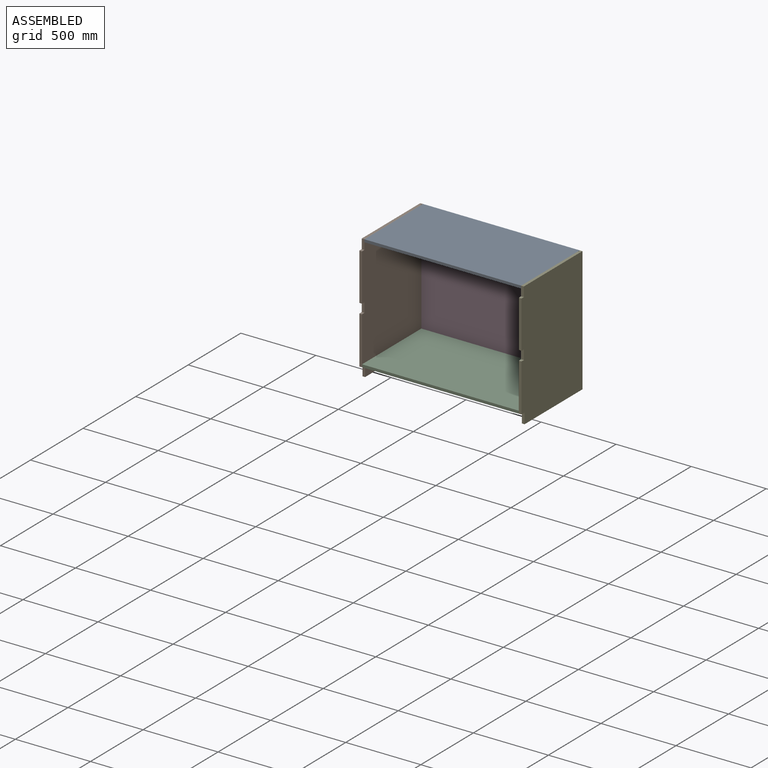
[diagram: assembled view]
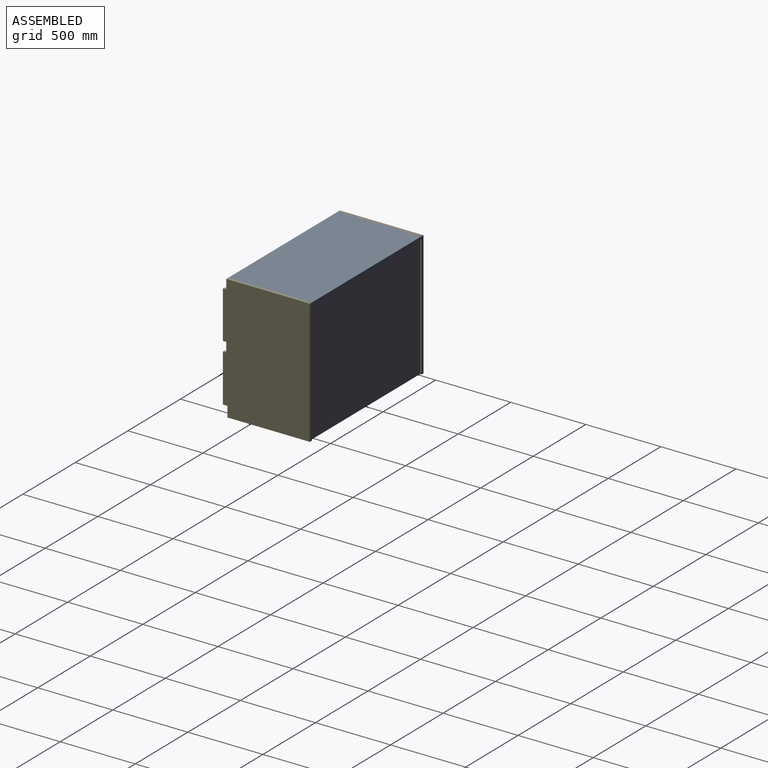
[diagram: assembled view, second angle]
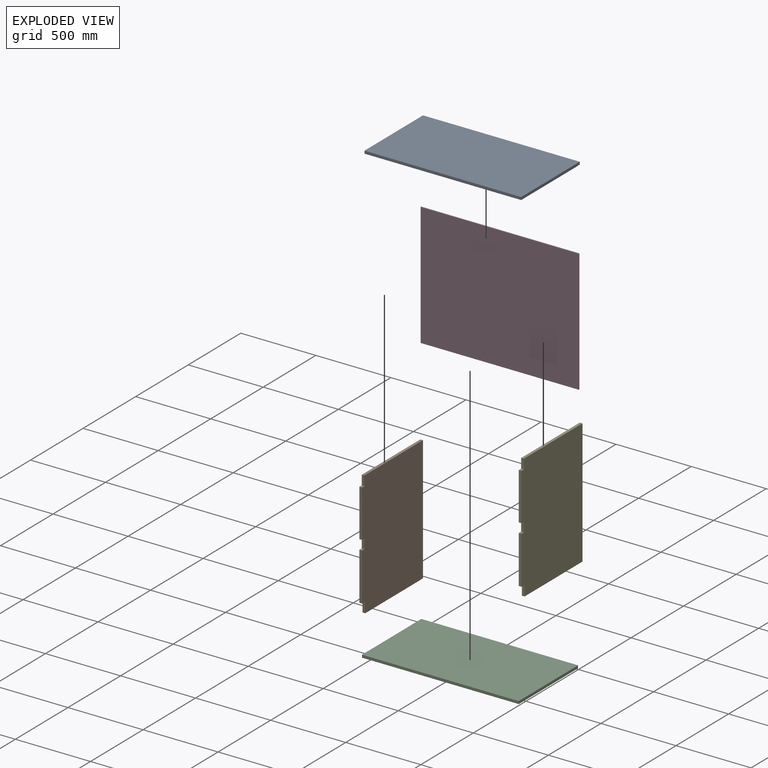
[diagram: exploded view]
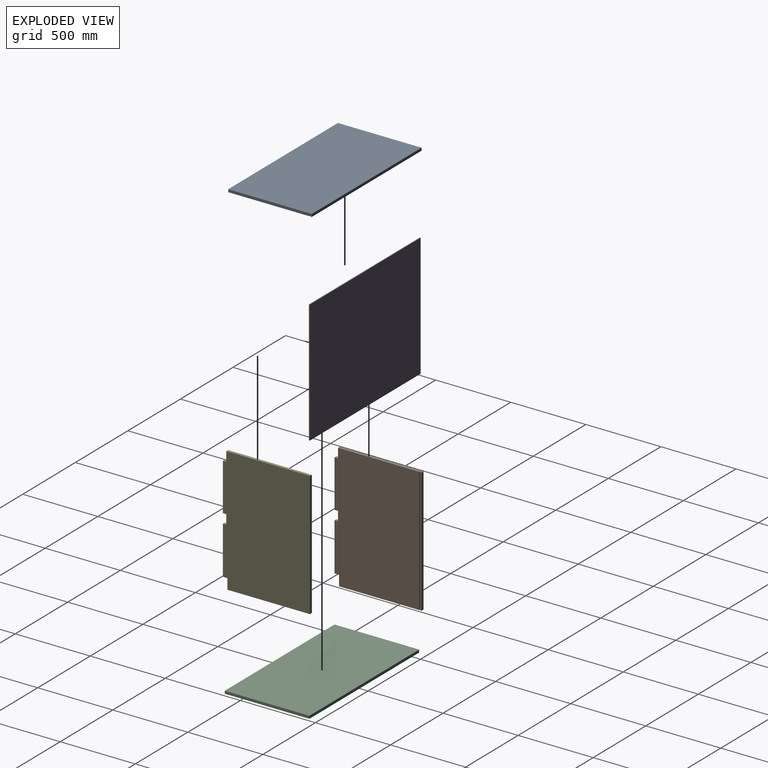
[diagram: exploded view, second angle]
ASSEMBLY  parts=5 mates=12
PART A: 10 faces, bbox 1044x557x18 mm
  f0: plane 1044x10mm, normal (0,0,-1), area 10440mm2, adj f1,f3,f4,f8
  f1: plane 557x18mm, normal (-1,0,0), area 9996mm2, adj f0,f2,f4,f5,f6,f7,f8,f9
  f2: plane 1044x18mm, normal (0,-1,0), area 18792mm2, adj f1,f3,f5,f6
  f3: plane 557x18mm, normal (1,0,0), area 9996mm2, adj f0,f2,f4,f5,f6,f7,f8,f9
  f4: plane 1044x18mm, normal (0,1,0), area 18792mm2, adj f0,f1,f3,f5
  f5: plane 1044x557mm, normal (0,0,1), area 581508mm2, adj f1,f2,f3,f4
  f6: plane 1044x541mm, normal (0,0,-1), area 564804mm2, adj f1,f2,f3,f7
  f7: plane 1044x5mm, normal (0,1,0), area 5220mm2, adj f1,f3,f6,f9
  f8: plane 1044x5mm, normal (0,-1,0), area 5220mm2, adj f0,f1,f3,f9
  f9: plane 1044x6mm, normal (0,0,-1), area 6264mm2, adj f1,f3,f7,f8
PART B: 18 faces, bbox 18x580x832 mm
  f0: plane 319x18mm, normal (0,-1,0), area 5742mm2, adj f1,f2,f11,f16
  f1: plane 832x564mm, normal (1,0,0), area 464204mm2, adj f0,f3,f4,f6,f9,f11,f12,f13
  f2: plane 832x580mm, normal (-1,0,0), area 477516mm2, adj f0,f3,f4,f5,f6,f11,f12,f13
  f3: plane 315x18mm, normal (0,-1,0), area 5670mm2, adj f1,f2,f13,f15
  f4: plane 550x18mm, normal (0,0,-1), area 9870mm2, adj f1,f2,f5,f7,f8,f9,f10,f12
  f5: plane 832x18mm, normal (0,1,0), area 14976mm2, adj f2,f4,f6,f7
  f6: plane 557x18mm, normal (0,0,1), area 9996mm2, adj f1,f2,f5,f7,f8,f9,f10,f14
  f7: plane 832x10mm, normal (1,0,0), area 8320mm2, adj f4,f5,f6,f8
  f8: plane 832x5mm, normal (0,-1,0), area 4160mm2, adj f4,f6,f7,f10
  f9: plane 832x5mm, normal (0,1,0), area 4160mm2, adj f1,f4,f6,f10
  f10: plane 832x6mm, normal (1,0,0), area 4992mm2, adj f4,f6,f8,f9
  f11: plane 30x18mm, normal (0,0,-1), area 540mm2, adj f0,f1,f2,f12
  f12: plane 70x18mm, normal (0,-1,0), area 1260mm2, adj f1,f2,f4,f11
  f13: plane 23x18mm, normal (0,0,1), area 414mm2, adj f1,f2,f3,f14
  f14: plane 64x18mm, normal (0,-1,0), area 1152mm2, adj f1,f2,f6,f13
  f15: plane 23x18mm, normal (0,0,-1), area 414mm2, adj f1,f2,f3,f17
  f16: plane 23x18mm, normal (0,0,1), area 414mm2, adj f0,f1,f2,f17
  f17: plane 64x18mm, normal (0,-1,0), area 1152mm2, adj f1,f2,f15,f16
PART C: 6 faces, bbox 1044x564x18 mm
  f0: plane 564x18mm, normal (-1,0,0), area 10152mm2, adj f1,f3,f4,f5
  f1: plane 1044x18mm, normal (0,-1,0), area 18792mm2, adj f0,f2,f4,f5
  f2: plane 564x18mm, normal (1,0,0), area 10152mm2, adj f1,f3,f4,f5
  f3: plane 1044x18mm, normal (0,1,0), area 18792mm2, adj f0,f2,f4,f5
  f4: plane 1044x564mm, normal (0,0,1), area 588816mm2, adj f0,f1,f2,f3
  f5: plane 1044x564mm, normal (0,0,-1), area 588816mm2, adj f0,f1,f2,f3
PART D: 6 faces, bbox 1054x6x819 mm
  f0: plane 819x6mm, normal (-1,0,0), area 4914mm2, adj f1,f3,f4,f5
  f1: plane 1054x6mm, normal (0,0,-1), area 6324mm2, adj f0,f2,f4,f5
  f2: plane 819x6mm, normal (1,0,0), area 4914mm2, adj f1,f3,f4,f5
  f3: plane 1054x6mm, normal (0,0,1), area 6324mm2, adj f0,f2,f4,f5
  f4: plane 1054x819mm, normal (0,-1,0), area 863226mm2, adj f0,f1,f2,f3
  f5: plane 1054x819mm, normal (0,1,0), area 863226mm2, adj f0,f1,f2,f3
PART E: 18 faces, bbox 18x580x832 mm
  f0: plane 319x18mm, normal (0,-1,0), area 5742mm2, adj f1,f2,f11,f16
  f1: plane 832x564mm, normal (-1,0,0), area 464204mm2, adj f0,f3,f4,f6,f9,f11,f12,f13
  f2: plane 832x580mm, normal (1,0,0), area 477516mm2, adj f0,f3,f4,f5,f6,f11,f12,f13
  f3: plane 315x18mm, normal (0,-1,0), area 5670mm2, adj f1,f2,f13,f15
  f4: plane 550x18mm, normal (0,0,-1), area 9870mm2, adj f1,f2,f5,f7,f8,f9,f10,f12
  f5: plane 832x18mm, normal (0,1,0), area 14976mm2, adj f2,f4,f6,f7
  f6: plane 557x18mm, normal (0,0,1), area 9996mm2, adj f1,f2,f5,f7,f8,f9,f10,f14
  f7: plane 832x10mm, normal (-1,0,0), area 8320mm2, adj f4,f5,f6,f8
  f8: plane 832x5mm, normal (0,-1,0), area 4160mm2, adj f4,f6,f7,f10
  f9: plane 832x5mm, normal (0,1,0), area 4160mm2, adj f1,f4,f6,f10
  f10: plane 832x6mm, normal (-1,0,0), area 4992mm2, adj f4,f6,f8,f9
  f11: plane 30x18mm, normal (0,0,-1), area 540mm2, adj f0,f1,f2,f12
  f12: plane 70x18mm, normal (0,-1,0), area 1260mm2, adj f1,f2,f4,f11
  f13: plane 23x18mm, normal (0,0,1), area 414mm2, adj f1,f2,f3,f14
  f14: plane 64x18mm, normal (0,-1,0), area 1152mm2, adj f1,f2,f6,f13
  f15: plane 23x18mm, normal (0,0,-1), area 414mm2, adj f1,f2,f3,f17
  f16: plane 23x18mm, normal (0,0,1), area 414mm2, adj f0,f1,f2,f17
  f17: plane 64x18mm, normal (0,-1,0), area 1152mm2, adj f1,f2,f15,f16
PLACE A t=(-375.83,-187.29,1703.91)mm
PLACE B t=(-1906.02,-275.8,-150.5)mm
PLACE C t=(-515.38,-272.69,959.91)mm
PLACE D t=(-1057.21,-21.89,1516.7)mm
PLACE E t=(34.98,-275.8,-150.5)mm
MATE planar C.f5 <-> B.f11  axis (0,0,-1) through (-505.02,-309.89,959.91)mm
MATE planar C.f5 <-> E.f11  axis (0,0,-1) through (-505.02,-309.89,959.91)mm
MATE planar A.f3 <-> E.f1  axis (1,0,0) through (16.98,-291.18,1712.93)mm
MATE planar E.f1 <-> C.f2  axis (-1,0,0) through (16.98,-306.96,1306.4)mm
MATE planar A.f5 <-> B.f6  axis (0,0,1) through (-505.02,-290.39,1721.91)mm
MATE planar D.f2 <-> E.f10  axis (1,0,0) through (21.98,-24.89,1299.41)mm
MATE planar C.f1 <-> E.f0  axis (0,-1,0) through (-505.02,-591.89,968.91)mm
MATE planar C.f1 <-> B.f0  axis (0,-1,0) through (-505.02,-591.89,968.91)mm
MATE planar D.f3 <-> A.f9  axis (0,0,1) through (-505.02,-24.89,1708.91)mm
MATE planar C.f0 <-> B.f1  axis (-1,0,0) through (-1027.02,-309.89,968.91)mm
MATE planar A.f4 <-> E.f5  axis (0,1,0) through (-505.02,-11.89,1712.91)mm
MATE planar D.f5 <-> E.f8  axis (0,1,0) through (-505.02,-21.89,1299.41)mm
